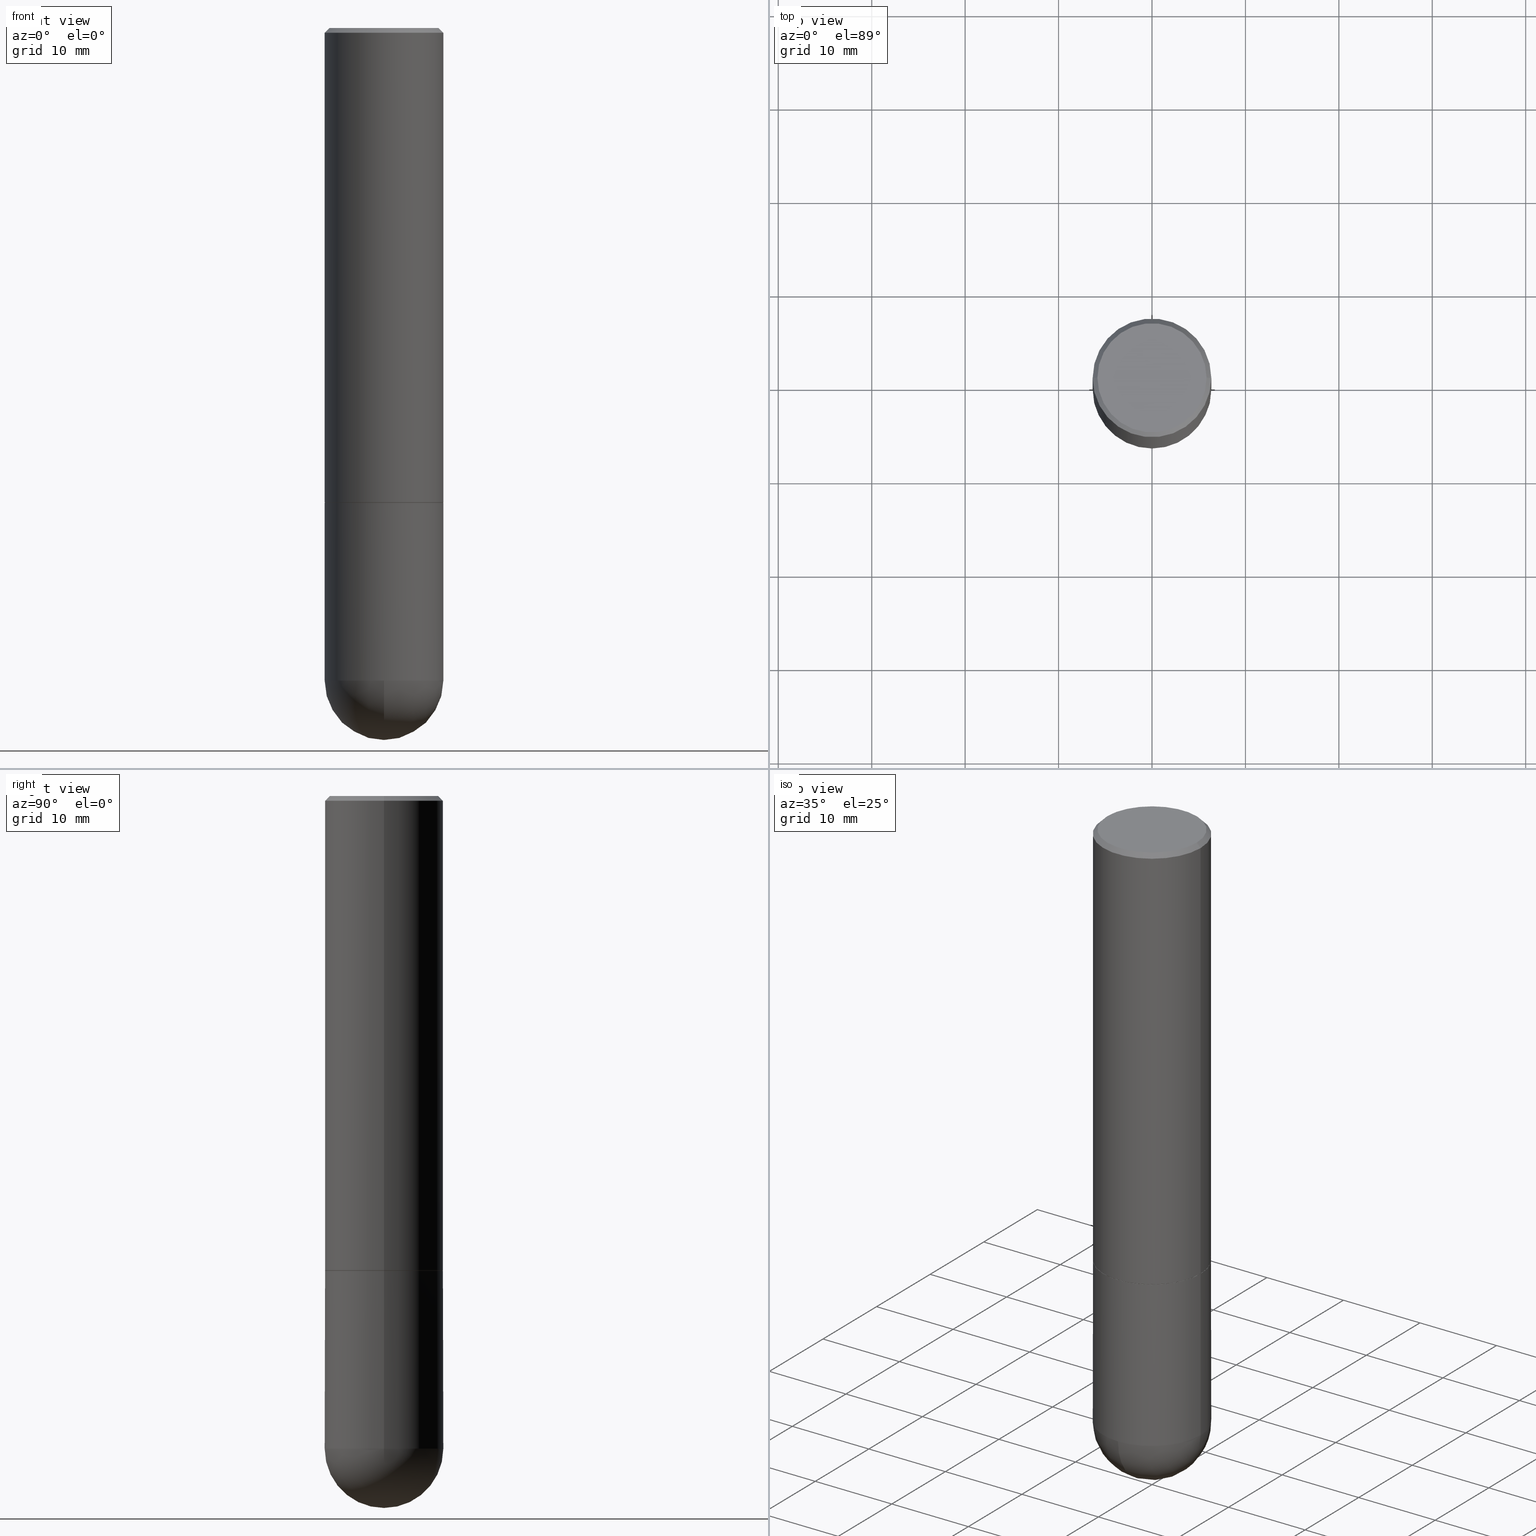
[diagram: canonical four-view strip — front | top / right | iso, engineering-drawing reading convention]
A machine part, canonical four-view strip (front | top / right | iso — engineering-drawing reading convention). The complete STEP part file that produces these views, byte-faithful:
ISO-10303-21;
HEADER;
FILE_DESCRIPTION (( 'STEP AP203' ),
    '1' );
FILE_NAME ('34923.STEP',
    '2024-02-21T18:25:57',
    ( '' ),
    ( '' ),
    'SwSTEP 2.0',
    'SolidWorks 2023',
    '' );
FILE_SCHEMA (( 'CONFIG_CONTROL_DESIGN' ));
ENDSEC;

DATA;
#1 = CARTESIAN_POINT ( 'NONE',  ( 6.725039217009124520E-29, -9.601573681818649859E-15, -2.750000000000000000 ) ) ;
#2 = ADVANCED_FACE ( 'NONE', ( #66 ), #123, .F. ) ;
#3 = AXIS2_PLACEMENT_3D ( 'NONE', #29, #222, #311 ) ;
#4 = CARTESIAN_POINT ( 'NONE',  ( -0.2500000000000002220, -1.748293572161901516E-15, -1.999000000000000110 ) ) ;
#5 = FACE_OUTER_BOUND ( 'NONE', #93, .T. ) ;
#6 = CARTESIAN_POINT ( 'NONE',  ( 0.2500000000000001110, -1.745740669421567664E-15, 1.219044193948984649E-29 ) ) ;
#7 = EDGE_CURVE ( 'NONE', #181, #81, #37, .T. ) ;
#8 = CARTESIAN_POINT ( 'NONE',  ( -0.2500000000000000000, -6.515911340352222020E-15, -2.750000000000000000 ) ) ;
#9 = CIRCLE ( 'NONE', #295, 0.2300000000000001488 ) ;
#10 = DIRECTION ( 'NONE',  ( -2.445468806185136597E-29, 3.491481338843145583E-15, 1.000000000000000000 ) ) ;
#11 = CARTESIAN_POINT ( 'NONE',  ( 4.890937612370273194E-29, -6.982962677686291165E-15, -2.000000000000000000 ) ) ;
#12 = ORIENTED_EDGE ( 'NONE', *, *, #319, .F. ) ;
#13 = APPROVAL_STATUS ( 'not_yet_approved' ) ;
#14 = PLANE ( 'NONE',  #284 ) ;
#15 = CIRCLE ( 'NONE', #259, 0.2500000000000000000 ) ;
#16 = LOCAL_TIME ( 13, 25, 57.00000000000000000, #218 ) ;
#17 = VERTEX_POINT ( 'NONE', #228 ) ;
#18 = CARTESIAN_POINT ( 'NONE',  ( 0.2500000000000002776, -8.725211865769017202E-15, -1.999000000000000110 ) ) ;
#19 = ORIENTED_EDGE ( 'NONE', *, *, #160, .T. ) ;
#20 = ADVANCED_FACE ( 'NONE', ( #247 ), #410, .T. ) ;
#21 = ORIENTED_EDGE ( 'NONE', *, *, #64, .T. ) ;
#22 = AXIS2_PLACEMENT_3D ( 'NONE', #287, #92, #165 ) ;
#23 = ORIENTED_EDGE ( 'NONE', *, *, #342, .F. ) ;
#24 = CC_DESIGN_APPROVAL ( #210, ( #241 ) ) ;
#25 = CARTESIAN_POINT ( 'NONE',  ( 0.2500000000000000000, -8.728703347107858632E-15, -2.000000000000000444 ) ) ;
#26 = APPROVAL_STATUS ( 'not_yet_approved' ) ;
#27 = DIRECTION ( 'NONE',  ( -2.445468806185136877E-29, 3.491481338843145188E-15, 1.000000000000000000 ) ) ;
#28 = CC_DESIGN_PERSON_AND_ORGANIZATION_ASSIGNMENT ( #60, #274, ( #241 ) ) ;
#29 = CARTESIAN_POINT ( 'NONE',  ( 4.890937612370287172E-31, -6.982962677686310098E-17, -0.02000000000000005593 ) ) ;
#30 = VECTOR ( 'NONE', #185, 39.37007874015748143 ) ;
#31 = AXIS2_PLACEMENT_3D ( 'NONE', #203, #10, #133 ) ;
#32 = CARTESIAN_POINT ( 'NONE',  ( -0.2489999999999999991, -5.208412811295418518E-15, -2.000000000000000000 ) ) ;
#33 = CC_DESIGN_DATE_AND_TIME_ASSIGNMENT ( #403, #308, ( #241 ) ) ;
#34 = CARTESIAN_POINT ( 'NONE',  ( 0.000000000000000000, 0.000000000000000000, 0.000000000000000000 ) ) ;
#35 = FACE_OUTER_BOUND ( 'NONE', #193, .T. ) ;
#36 = DIRECTION ( 'NONE',  ( 1.000000000000000000, -6.982962677686266711E-15, 4.876176775795935793E-29 ) ) ;
#37 = CIRCLE ( 'NONE', #183, 0.2489999999999999991 ) ;
#38 = DIRECTION ( 'NONE',  ( -2.445468806185136597E-29, 3.491481338843145583E-15, 1.000000000000000000 ) ) ;
#39 = ADVANCED_FACE ( 'NONE', ( #91 ), #350, .T. ) ;
#40 = MECHANICAL_CONTEXT ( 'NONE', #242, 'mechanical' ) ;
#41 = CARTESIAN_POINT ( 'NONE',  ( 0.2500000000000000000, -1.784954126219746189E-15, -0.02000000000000005593 ) ) ;
#42 = CIRCLE ( 'NONE', #253, 0.2500000000000000000 ) ;
#43 = CARTESIAN_POINT ( 'NONE',  ( -0.2500000000000000000, 1.675911042644703577E-15, -0.02000000000000005593 ) ) ;
#44 = AXIS2_PLACEMENT_3D ( 'NONE', #72, #197, #164 ) ;
#45 = ADVANCED_FACE ( 'NONE', ( #126 ), #215, .T. ) ;
#46 = COORDINATED_UNIVERSAL_TIME_OFFSET ( 5, 0, .BEHIND. ) ;
#47 = CARTESIAN_POINT ( 'NONE',  ( -0.2500000000000001110, 1.776356839400251254E-15, -1.229733772563727146E-29 ) ) ;
#48 = EDGE_CURVE ( 'NONE', #51, #56, #54, .T. ) ;
#49 = DATE_TIME_ROLE ( 'creation_date' ) ;
#50 = CARTESIAN_POINT ( 'NONE',  ( 3.340324525872703422E-45, -4.769098145217431040E-31, -1.365923996832131609E-16 ) ) ;
#51 = VERTEX_POINT ( 'NONE', #159 ) ;
#52 = DATE_AND_TIME ( #332, #216 ) ;
#53 = CARTESIAN_POINT ( 'NONE',  ( 0.2500000000000000000, -1.784954126219746189E-15, -0.02000000000000005593 ) ) ;
#54 = CIRCLE ( 'NONE', #321, 0.2500000000000000000 ) ;
#55 = ORGANIZATION ( 'UNSPECIFIED', 'UNSPECIFIED', '' ) ;
#56 = VERTEX_POINT ( 'NONE', #25 ) ;
#57 = EDGE_CURVE ( 'NONE', #307, #17, #408, .T. ) ;
#58 = ORIENTED_EDGE ( 'NONE', *, *, #392, .F. ) ;
#59 = ORIENTED_EDGE ( 'NONE', *, *, #352, .F. ) ;
#60 = PERSON_AND_ORGANIZATION ( #396, #55 ) ;
#61 = VECTOR ( 'NONE', #196, 39.37007874015748143 ) ;
#62 = VERTEX_POINT ( 'NONE', #370 ) ;
#63 =( GEOMETRIC_REPRESENTATION_CONTEXT ( 3 ) GLOBAL_UNCERTAINTY_ASSIGNED_CONTEXT ( ( #116 ) ) GLOBAL_UNIT_ASSIGNED_CONTEXT ( ( #107, #258, #305 ) ) REPRESENTATION_CONTEXT ( 'NONE', 'WORKASPACE' ) );
#64 = EDGE_CURVE ( 'NONE', #143, #341, #97, .T. ) ;
#65 = CARTESIAN_POINT ( 'NONE',  ( 0.2489999999999999991, -8.721720384430171040E-15, -2.000000000000000000 ) ) ;
#66 = FACE_OUTER_BOUND ( 'NONE', #366, .T. ) ;
#67 = DIRECTION ( 'NONE',  ( 1.000000000000000000, -6.982962677686266711E-15, 4.876176775795935793E-29 ) ) ;
#68 = ORIENTED_EDGE ( 'NONE', *, *, #64, .F. ) ;
#69 = EDGE_CURVE ( 'NONE', #181, #143, #225, .T. ) ;
#70 = VERTEX_POINT ( 'NONE', #347 ) ;
#71 = CARTESIAN_POINT ( 'NONE',  ( 4.890937612370287172E-31, -6.982962677686310098E-17, -0.02000000000000005593 ) ) ;
#72 = CARTESIAN_POINT ( 'NONE',  ( 4.890937612370287172E-31, -6.982962677686310098E-17, -0.02000000000000005593 ) ) ;
#73 = AXIS2_PLACEMENT_3D ( 'NONE', #212, #171, #358 ) ;
#74 = DIRECTION ( 'NONE',  ( -1.000000000000000000, 7.105427357601001070E-15, -4.926315508542082329E-29 ) ) ;
#75 = CARTESIAN_POINT ( 'NONE',  ( 0.000000000000000000, 0.000000000000000000, 0.000000000000000000 ) ) ;
#76 = FACE_OUTER_BOUND ( 'NONE', #86, .T. ) ;
#77 = PERSON_AND_ORGANIZATION ( #396, #55 ) ;
#78 = DIRECTION ( 'NONE',  ( -1.000000000000000000, 6.982962677686265922E-15, -4.876176775795935793E-29 ) ) ;
#79 = DIRECTION ( 'NONE',  ( 0.000000000000000000, 0.000000000000000000, 1.000000000000000000 ) ) ;
#80 = MANIFOLD_SOLID_BREP ( 'Body-Move/Copy2[1]', #316 ) ;
#81 = VERTEX_POINT ( 'NONE', #32 ) ;
#82 = CALENDAR_DATE ( 2024, 21, 2 ) ;
#83 = ORIENTED_EDGE ( 'NONE', *, *, #272, .F. ) ;
#84 = PERSON_AND_ORGANIZATION ( #396, #55 ) ;
#85 = ORIENTED_EDGE ( 'NONE', *, *, #263, .T. ) ;
#86 = EDGE_LOOP ( 'NONE', ( #237, #243, #345, #335, #400 ) ) ;
#87 = VERTEX_POINT ( 'NONE', #157 ) ;
#88 = CIRCLE ( 'NONE', #402, 0.2500000000000000000 ) ;
#89 = DIRECTION ( 'NONE',  ( -2.445468806185136597E-29, 3.491481338843145583E-15, 1.000000000000000000 ) ) ;
#90 = CONICAL_SURFACE ( 'NONE', #31, 0.2489999999999999991, 0.7853981633976873100 ) ;
#91 = FACE_OUTER_BOUND ( 'NONE', #302, .T. ) ;
#92 = DIRECTION ( 'NONE',  ( -2.445468806185136597E-29, 3.491481338843145583E-15, 1.000000000000000000 ) ) ;
#93 = EDGE_LOOP ( 'NONE', ( #129, #189 ) ) ;
#94 = FACE_OUTER_BOUND ( 'NONE', #219, .T. ) ;
#95 = DIRECTION ( 'NONE',  ( 6.982962677686266711E-15, 1.000000000000000000, 0.000000000000000000 ) ) ;
#96 = CIRCLE ( 'NONE', #22, 0.2489999999999999991 ) ;
#97 = CIRCLE ( 'NONE', #380, 0.2500000000000002776 ) ;
#98 = SPHERICAL_SURFACE ( 'NONE', #110, 0.2500000000000001110 ) ;
#99 = CARTESIAN_POINT ( 'NONE',  ( 4.888492143564088712E-29, -6.979471196347448158E-15, -1.999000000000000110 ) ) ;
#100 = DIRECTION ( 'NONE',  ( -2.445468806185136597E-29, 3.491481338843145583E-15, 1.000000000000000000 ) ) ;
#101 = FACE_OUTER_BOUND ( 'NONE', #146, .T. ) ;
#102 = AXIS2_PLACEMENT_3D ( 'NONE', #155, #244, #95 ) ;
#103 = FACE_OUTER_BOUND ( 'NONE', #255, .T. ) ;
#104 = CC_DESIGN_APPROVAL ( #195, ( #369 ) ) ;
#105 = DIRECTION ( 'NONE',  ( -0.7071067811867165487, 7.493145998870964739E-15, 0.7071067811863784858 ) ) ;
#106 = CARTESIAN_POINT ( 'NONE',  ( 0.000000000000000000, 0.000000000000000000, 0.000000000000000000 ) ) ;
#107 =( CONVERSION_BASED_UNIT ( 'INCH', #300 ) LENGTH_UNIT ( ) NAMED_UNIT ( #188 ) );
#108 = CARTESIAN_POINT ( 'NONE',  ( 0.000000000000000000, 0.000000000000000000, 0.000000000000000000 ) ) ;
#109 = PERSON_AND_ORGANIZATION_ROLE ( 'creator' ) ;
#110 = AXIS2_PLACEMENT_3D ( 'NONE', #128, #131, #346 ) ;
#111 = ORIENTED_EDGE ( 'NONE', *, *, #113, .T. ) ;
#112 =( LENGTH_UNIT ( ) NAMED_UNIT ( * ) SI_UNIT ( $, .METRE. ) );
#113 = EDGE_CURVE ( 'NONE', #70, #362, #15, .T. ) ;
#114 = ORIENTED_EDGE ( 'NONE', *, *, #269, .F. ) ;
#115 = ORIENTED_EDGE ( 'NONE', *, *, #239, .T. ) ;
#116 = UNCERTAINTY_MEASURE_WITH_UNIT (LENGTH_MEASURE( 1.000000000000000082E-05 ), #107, 'distance_accuracy_value', 'NONE');
#117 = AXIS2_PLACEMENT_3D ( 'NONE', #139, #393, #389 ) ;
#118 = ORIENTED_EDGE ( 'NONE', *, *, #373, .T. ) ;
#119 = PERSON_AND_ORGANIZATION ( #396, #55 ) ;
#120 = ORIENTED_EDGE ( 'NONE', *, *, #125, .T. ) ;
#121 = ORIENTED_EDGE ( 'NONE', *, *, #354, .T. ) ;
#122 = PERSON_AND_ORGANIZATION ( #396, #55 ) ;
#123 = PLANE ( 'NONE',  #266 ) ;
#124 = APPROVAL_PERSON_ORGANIZATION ( #84, #210, #182 ) ;
#125 = EDGE_CURVE ( 'NONE', #362, #56, #127, .T. ) ;
#126 = FACE_OUTER_BOUND ( 'NONE', #270, .T. ) ;
#127 = LINE ( 'NONE', #312, #198 ) ;
#128 = CARTESIAN_POINT ( 'NONE',  ( 6.393919439095240515E-29, -1.007575604995870173E-14, -2.750000000000000444 ) ) ;
#129 = ORIENTED_EDGE ( 'NONE', *, *, #7, .F. ) ;
#130 = LINE ( 'NONE', #6, #162 ) ;
#131 = DIRECTION ( 'NONE',  ( -1.000000000000000000, 6.982962677686265922E-15, -4.883557194083113462E-29 ) ) ;
#132 = APPROVAL_DATE_TIME ( #52, #314 ) ;
#133 = DIRECTION ( 'NONE',  ( 1.000000000000000000, -6.982962677686266711E-15, 0.000000000000000000 ) ) ;
#134 = AXIS2_PLACEMENT_3D ( 'NONE', #202, #74, #208 ) ;
#135 = DIRECTION ( 'NONE',  ( -2.445468806185136597E-29, 3.491481338843145583E-15, 1.000000000000000000 ) ) ;
#136 = EDGE_CURVE ( 'NONE', #407, #51, #154, .T. ) ;
#137 = PERSON_AND_ORGANIZATION_ROLE ( 'design_owner' ) ;
#138 = CALENDAR_DATE ( 2024, 21, 2 ) ;
#139 = CARTESIAN_POINT ( 'NONE',  ( 4.890937612370287172E-31, -6.982962677686310098E-17, -0.02000000000000005593 ) ) ;
#140 = VERTEX_POINT ( 'NONE', #262 ) ;
#141 = APPROVAL_ROLE ( '' ) ;
#142 = CIRCLE ( 'NONE', #149, 0.2500000000000000000 ) ;
#143 = VERTEX_POINT ( 'NONE', #18 ) ;
#144 = SHAPE_DEFINITION_REPRESENTATION ( #281, #153 ) ;
#145 = CYLINDRICAL_SURFACE ( 'NONE', #327, 0.2500000000000000000 ) ;
#146 = EDGE_LOOP ( 'NONE', ( #273, #147, #111, #120, #336 ) ) ;
#147 = ORIENTED_EDGE ( 'NONE', *, *, #207, .T. ) ;
#148 = DIRECTION ( 'NONE',  ( -0.7071067811865464625, 2.468850131082245228E-15, -0.7071067811865486830 ) ) ;
#149 = AXIS2_PLACEMENT_3D ( 'NONE', #161, #333, #204 ) ;
#150 = AXIS2_PLACEMENT_3D ( 'NONE', #75, #79, #363 ) ;
#151 = ORIENTED_EDGE ( 'NONE', *, *, #57, .F. ) ;
#152 = DIRECTION ( 'NONE',  ( 1.000000000000000000, -6.982962677686266711E-15, 0.000000000000000000 ) ) ;
#153 = ADVANCED_BREP_SHAPE_REPRESENTATION ( '34923', ( #80, #361, #150 ), #63 ) ;
#154 = LINE ( 'NONE', #235, #61 ) ;
#155 = CARTESIAN_POINT ( 'NONE',  ( 6.393919439095240515E-29, -1.007575604995870173E-14, -2.750000000000000444 ) ) ;
#156 = DIRECTION ( 'NONE',  ( -2.445468806185136597E-29, 3.491481338843145583E-15, 1.000000000000000000 ) ) ;
#157 = CARTESIAN_POINT ( 'NONE',  ( 0.2300000000000001488, -1.681434332853599997E-15, -1.365923996832016731E-16 ) ) ;
#158 = CARTESIAN_POINT ( 'NONE',  ( 4.890937612370273754E-29, -6.982962677686291954E-15, -2.000000000000000444 ) ) ;
#159 = CARTESIAN_POINT ( 'NONE',  ( -0.2500000000000000000, -6.515911340352220442E-15, -2.000000000000000444 ) ) ;
#160 = EDGE_CURVE ( 'NONE', #341, #140, #390, .T. ) ;
#161 = CARTESIAN_POINT ( 'NONE',  ( 6.725039217009124520E-29, -9.601573681818649859E-15, -2.750000000000000000 ) ) ;
#162 = VECTOR ( 'NONE', #256, 39.37007874015748143 ) ;
#163 = CIRCLE ( 'NONE', #134, 0.2500000000000001110 ) ;
#164 = DIRECTION ( 'NONE',  ( 1.000000000000000000, -6.982962677686266711E-15, 0.000000000000000000 ) ) ;
#165 = DIRECTION ( 'NONE',  ( 1.000000000000000000, -6.982962677686266711E-15, 0.000000000000000000 ) ) ;
#166 = LINE ( 'NONE', #41, #304 ) ;
#167 = CIRCLE ( 'NONE', #73, 0.2500000000000002776 ) ;
#168 = AXIS2_PLACEMENT_3D ( 'NONE', #384, #100, #232 ) ;
#169 = DIRECTION ( 'NONE',  ( 1.000000000000000000, -6.982962677686267499E-15, 4.876176775795936353E-29 ) ) ;
#170 = APPROVAL_STATUS ( 'not_yet_approved' ) ;
#171 = DIRECTION ( 'NONE',  ( -2.445468806185136597E-29, 3.491481338843145583E-15, 1.000000000000000000 ) ) ;
#172 = DIRECTION ( 'NONE',  ( 1.000000000000000000, -6.982962677686265922E-15, 4.879110437680772635E-29 ) ) ;
#173 = ORIENTED_EDGE ( 'NONE', *, *, #342, .T. ) ;
#174 = PERSON_AND_ORGANIZATION ( #396, #55 ) ;
#175 = AXIS2_PLACEMENT_3D ( 'NONE', #257, #320, #200 ) ;
#176 = LOCAL_TIME ( 13, 25, 57.00000000000000000, #329 ) ;
#177 = DIRECTION ( 'NONE',  ( -2.438088387897960049E-29, 3.491481338843145188E-15, 1.000000000000000000 ) ) ;
#178 = ORIENTED_EDGE ( 'NONE', *, *, #113, .F. ) ;
#179 = EDGE_LOOP ( 'NONE', ( #309, #217, #173, #401 ) ) ;
#180 = CC_DESIGN_PERSON_AND_ORGANIZATION_ASSIGNMENT ( #122, #365, ( #199 ) ) ;
#181 = VERTEX_POINT ( 'NONE', #399 ) ;
#182 = APPROVAL_ROLE ( '' ) ;
#183 = AXIS2_PLACEMENT_3D ( 'NONE', #184, #283, #285 ) ;
#184 = CARTESIAN_POINT ( 'NONE',  ( 4.890937612370273194E-29, -6.982962677686291165E-15, -2.000000000000000000 ) ) ;
#185 = DIRECTION ( 'NONE',  ( 0.7071067811867165487, -2.468850131084027659E-15, 0.7071067811863784858 ) ) ;
#186 = ADVANCED_FACE ( 'NONE', ( #76 ), #145, .T. ) ;
#187 = COORDINATED_UNIVERSAL_TIME_OFFSET ( 5, 0, .BEHIND. ) ;
#188 = DIMENSIONAL_EXPONENTS ( 1.000000000000000000, 0.000000000000000000, 0.000000000000000000, 0.000000000000000000, 0.000000000000000000, 0.000000000000000000, 0.000000000000000000 ) ;
#189 = ORIENTED_EDGE ( 'NONE', *, *, #282, .F. ) ;
#190 = CARTESIAN_POINT ( 'NONE',  ( 7.015976219256266741E-29, -1.093331829968014633E-14, -3.000000000000000888 ) ) ;
#191 = VECTOR ( 'NONE', #209, 39.37007874015748143 ) ;
#192 = ORIENTED_EDGE ( 'NONE', *, *, #352, .T. ) ;
#193 = EDGE_LOOP ( 'NONE', ( #58, #59, #398, #121 ) ) ;
#194 = DIRECTION ( 'NONE',  ( 2.445468806185136597E-29, -3.491481338843145583E-15, -1.000000000000000000 ) ) ;
#195 = APPROVAL ( #170, 'UNSPECIFIED' ) ;
#196 = DIRECTION ( 'NONE',  ( -2.445468806185136877E-29, 3.491481338843145188E-15, 1.000000000000000000 ) ) ;
#197 = DIRECTION ( 'NONE',  ( -2.445468806185136597E-29, 3.491481338843145583E-15, 1.000000000000000000 ) ) ;
#198 = VECTOR ( 'NONE', #27, 39.37007874015748143 ) ;
#199 = PRODUCT_DEFINITION_FORMATION_WITH_SPECIFIED_SOURCE ( 'ANY', '', #340, .NOT_KNOWN. ) ;
#200 = DIRECTION ( 'NONE',  ( 1.000000000000000000, -6.982962677686262766E-15, 0.000000000000000000 ) ) ;
#201 = EDGE_CURVE ( 'NONE', #341, #143, #167, .T. ) ;
#202 = CARTESIAN_POINT ( 'NONE',  ( 6.393919439095240515E-29, -1.007575604995870173E-14, -2.750000000000000444 ) ) ;
#203 = CARTESIAN_POINT ( 'NONE',  ( 4.890937612370273194E-29, -6.982962677686291165E-15, -2.000000000000000000 ) ) ;
#204 = DIRECTION ( 'NONE',  ( 1.000000000000000000, -6.982962677686262766E-15, 0.000000000000000000 ) ) ;
#205 = APPROVAL_PERSON_ORGANIZATION ( #174, #314, #141 ) ;
#206 = FACE_OUTER_BOUND ( 'NONE', #179, .T. ) ;
#207 = EDGE_CURVE ( 'NONE', #407, #70, #142, .T. ) ;
#208 = DIRECTION ( 'NONE',  ( -7.105427357601001859E-15, -1.000000000000000000, 0.000000000000000000 ) ) ;
#209 = DIRECTION ( 'NONE',  ( -2.445468806185136877E-29, 3.491481338843145188E-15, 1.000000000000000000 ) ) ;
#210 = APPROVAL ( #26, 'UNSPECIFIED' ) ;
#211 = VERTEX_POINT ( 'NONE', #53 ) ;
#212 = CARTESIAN_POINT ( 'NONE',  ( 4.888492143564088712E-29, -6.979471196347448158E-15, -1.999000000000000110 ) ) ;
#213 = ORIENTED_EDGE ( 'NONE', *, *, #373, .F. ) ;
#214 = APPROVAL_DATE_TIME ( #372, #210 ) ;
#215 = CONICAL_SURFACE ( 'NONE', #3, 0.2500000000000000000, 0.7853981633974467247 ) ;
#216 = LOCAL_TIME ( 13, 25, 57.00000000000000000, #268 ) ;
#217 = ORIENTED_EDGE ( 'NONE', *, *, #201, .T. ) ;
#218 = COORDINATED_UNIVERSAL_TIME_OFFSET ( 5, 0, .BEHIND. ) ;
#219 = EDGE_LOOP ( 'NONE', ( #404, #299, #395, #240 ) ) ;
#220 = ORIENTED_EDGE ( 'NONE', *, *, #392, .T. ) ;
#221 = CIRCLE ( 'NONE', #168, 0.2300000000000001488 ) ;
#222 = DIRECTION ( 'NONE',  ( 2.445468806185136597E-29, -3.491481338843145583E-15, -1.000000000000000000 ) ) ;
#223 = ADVANCED_FACE ( 'NONE', ( #5 ), #301, .F. ) ;
#224 = CARTESIAN_POINT ( 'NONE',  ( 6.393919439095240515E-29, -1.007575604995870173E-14, -2.750000000000000444 ) ) ;
#225 = LINE ( 'NONE', #65, #30 ) ;
#226 = CARTESIAN_POINT ( 'NONE',  ( 4.890937612370273194E-29, -6.982962677686291165E-15, -2.000000000000000000 ) ) ;
#227 = CIRCLE ( 'NONE', #117, 0.2500000000000000000 ) ;
#228 = CARTESIAN_POINT ( 'NONE',  ( 1.745740669421632745E-15, 0.2499999999999902300, -2.750000000000000888 ) ) ;
#229 = ADVANCED_FACE ( 'NONE', ( #292 ), #14, .F. ) ;
#230 = DIRECTION ( 'NONE',  ( 1.000000000000000000, -6.982962677686262766E-15, 0.000000000000000000 ) ) ;
#231 = ORIENTED_EDGE ( 'NONE', *, *, #239, .F. ) ;
#232 = DIRECTION ( 'NONE',  ( 1.000000000000000000, -6.982962677686265922E-15, 4.879110437680772635E-29 ) ) ;
#233 = PRODUCT_RELATED_PRODUCT_CATEGORY ( 'detail', '', ( #340 ) ) ;
#234 = CARTESIAN_POINT ( 'NONE',  ( 1.606081415867842251E-15, 0.2300000000000001488, -8.713369077755306147E-16 ) ) ;
#235 = CARTESIAN_POINT ( 'NONE',  ( -0.2500000000000000000, 1.776356839400250465E-15, -1.229733772563726445E-29 ) ) ;
#236 = APPROVAL_DATE_TIME ( #264, #195 ) ;
#237 = ORIENTED_EDGE ( 'NONE', *, *, #319, .T. ) ;
#238 = ORIENTED_EDGE ( 'NONE', *, *, #379, .T. ) ;
#239 = EDGE_CURVE ( 'NONE', #211, #140, #227, .T. ) ;
#240 = ORIENTED_EDGE ( 'NONE', *, *, #201, .F. ) ;
#241 = SECURITY_CLASSIFICATION ( '', '', #343 ) ;
#242 = APPLICATION_CONTEXT ( 'configuration controlled 3d designs of mechanical parts and assemblies' ) ;
#243 = ORIENTED_EDGE ( 'NONE', *, *, #136, .T. ) ;
#244 = DIRECTION ( 'NONE',  ( 1.000000000000000000, -6.982962677686265922E-15, 4.883557194083112340E-29 ) ) ;
#245 = CALENDAR_DATE ( 2024, 21, 2 ) ;
#246 = AXIS2_PLACEMENT_3D ( 'NONE', #71, #194, #289 ) ;
#247 = FACE_OUTER_BOUND ( 'NONE', #278, .T. ) ;
#248 = CYLINDRICAL_SURFACE ( 'NONE', #290, 0.2500000000000000000 ) ;
#249 = DIRECTION ( 'NONE',  ( 6.982962677686265922E-15, 1.000000000000000000, -4.370956789862818783E-15 ) ) ;
#250 = DIRECTION ( 'NONE',  ( 2.438088387897960049E-29, -3.491481338843145188E-15, -1.000000000000000000 ) ) ;
#251 = ADVANCED_FACE ( 'NONE', ( #206 ), #330, .T. ) ;
#252 = DIRECTION ( 'NONE',  ( -2.445468806185136597E-29, 3.491481338843145583E-15, 1.000000000000000000 ) ) ;
#253 = AXIS2_PLACEMENT_3D ( 'NONE', #381, #315, #230 ) ;
#254 = CC_DESIGN_SECURITY_CLASSIFICATION ( #241, ( #199 ) ) ;
#255 = EDGE_LOOP ( 'NONE', ( #265, #238, #68, #310 ) ) ;
#256 = DIRECTION ( 'NONE',  ( -2.445468806185136877E-29, 3.491481338843145188E-15, 1.000000000000000000 ) ) ;
#257 = CARTESIAN_POINT ( 'NONE',  ( 6.725039217009124520E-29, -9.601573681818649859E-15, -2.750000000000000000 ) ) ;
#258 =( NAMED_UNIT ( * ) PLANE_ANGLE_UNIT ( ) SI_UNIT ( $, .RADIAN. ) );
#259 = AXIS2_PLACEMENT_3D ( 'NONE', #1, #286, #412 ) ;
#260 = DIRECTION ( 'NONE',  ( -2.445468806185136597E-29, 3.491481338843145583E-15, 1.000000000000000000 ) ) ;
#261 = APPLICATION_PROTOCOL_DEFINITION ( 'international standard', 'config_control_design', 1994, #323 ) ;
#262 = CARTESIAN_POINT ( 'NONE',  ( -0.2500000000000000000, 1.675911042644703577E-15, -0.02000000000000005593 ) ) ;
#263 = EDGE_CURVE ( 'NONE', #87, #62, #9, .T. ) ;
#264 = DATE_AND_TIME ( #138, #382 ) ;
#265 = ORIENTED_EDGE ( 'NONE', *, *, #7, .T. ) ;
#266 = AXIS2_PLACEMENT_3D ( 'NONE', #280, #250, #353 ) ;
#267 = CIRCLE ( 'NONE', #44, 0.2500000000000000000 ) ;
#268 = COORDINATED_UNIVERSAL_TIME_OFFSET ( 5, 0, .BEHIND. ) ;
#269 = EDGE_CURVE ( 'NONE', #62, #140, #357, .T. ) ;
#270 = EDGE_LOOP ( 'NONE', ( #364, #220, #115, #114 ) ) ;
#271 = DIRECTION ( 'NONE',  ( 1.000000000000000000, -6.982962677686265922E-15, 4.876176775795935793E-29 ) ) ;
#272 = EDGE_CURVE ( 'NONE', #362, #17, #303, .T. ) ;
#273 = ORIENTED_EDGE ( 'NONE', *, *, #136, .F. ) ;
#274 = PERSON_AND_ORGANIZATION_ROLE ( 'classification_officer' ) ;
#275 = ORIENTED_EDGE ( 'NONE', *, *, #306, .T. ) ;
#276 = AXIS2_PLACEMENT_3D ( 'NONE', #11, #177, #271 ) ;
#277 = LOCAL_TIME ( 13, 25, 57.00000000000000000, #187 ) ;
#278 = EDGE_LOOP ( 'NONE', ( #21, #19, #231, #23 ) ) ;
#279 = ADVANCED_FACE ( 'NONE', ( #101 ), #248, .T. ) ;
#280 = CARTESIAN_POINT ( 'NONE',  ( 1.745740669421615390E-15, 0.2499999999999930334, -2.000000000000000888 ) ) ;
#281 = PRODUCT_DEFINITION_SHAPE ( 'NONE', 'NONE',  #369 ) ;
#282 = EDGE_CURVE ( 'NONE', #81, #181, #96, .T. ) ;
#283 = DIRECTION ( 'NONE',  ( -2.445468806185136597E-29, 3.491481338843145583E-15, 1.000000000000000000 ) ) ;
#284 = AXIS2_PLACEMENT_3D ( 'NONE', #234, #326, #78 ) ;
#285 = DIRECTION ( 'NONE',  ( 1.000000000000000000, -6.982962677686266711E-15, 0.000000000000000000 ) ) ;
#286 = DIRECTION ( 'NONE',  ( -2.445468806185136597E-29, 3.491481338843145583E-15, 1.000000000000000000 ) ) ;
#287 = CARTESIAN_POINT ( 'NONE',  ( 4.890937612370273194E-29, -6.982962677686291165E-15, -2.000000000000000000 ) ) ;
#288 = DIRECTION ( 'NONE',  ( 1.000000000000000000, -6.982962677686267499E-15, 4.876176775795936353E-29 ) ) ;
#289 = DIRECTION ( 'NONE',  ( -1.000000000000000000, 6.982962677686266711E-15, 0.000000000000000000 ) ) ;
#290 = AXIS2_PLACEMENT_3D ( 'NONE', #375, #156, #67 ) ;
#291 = CC_DESIGN_APPROVAL ( #314, ( #199 ) ) ;
#292 = FACE_OUTER_BOUND ( 'NONE', #367, .T. ) ;
#293 = CARTESIAN_POINT ( 'NONE',  ( 0.2500000000000000000, -1.003800884917403995E-14, -2.750000000000000000 ) ) ;
#294 = CARTESIAN_POINT ( 'NONE',  ( -0.2489999999999999991, -5.213711265643641709E-15, -2.000000000000000000 ) ) ;
#295 = AXIS2_PLACEMENT_3D ( 'NONE', #50, #260, #172 ) ;
#296 = VECTOR ( 'NONE', #105, 39.37007874015748143 ) ;
#297 = ADVANCED_FACE ( 'NONE', ( #377 ), #98, .T. ) ;
#298 = LINE ( 'NONE', #294, #296 ) ;
#299 = ORIENTED_EDGE ( 'NONE', *, *, #282, .T. ) ;
#300 = LENGTH_MEASURE_WITH_UNIT ( LENGTH_MEASURE( 0.02539999999999999897 ), #112 );
#301 = PLANE ( 'NONE',  #276 ) ;
#302 = EDGE_LOOP ( 'NONE', ( #151, #118, #338, #12 ) ) ;
#303 = CIRCLE ( 'NONE', #175, 0.2500000000000000000 ) ;
#304 = VECTOR ( 'NONE', #385, 39.37007874015748143 ) ;
#305 =( NAMED_UNIT ( * ) SI_UNIT ( $, .STERADIAN. ) SOLID_ANGLE_UNIT ( ) );
#306 = EDGE_CURVE ( 'NONE', #56, #51, #88, .T. ) ;
#307 = VERTEX_POINT ( 'NONE', #190 ) ;
#308 = DATE_TIME_ROLE ( 'classification_date' ) ;
#309 = ORIENTED_EDGE ( 'NONE', *, *, #160, .F. ) ;
#310 = ORIENTED_EDGE ( 'NONE', *, *, #69, .F. ) ;
#311 = DIRECTION ( 'NONE',  ( -1.000000000000000000, 6.982962677686266711E-15, 0.000000000000000000 ) ) ;
#312 = CARTESIAN_POINT ( 'NONE',  ( 0.2500000000000000000, -1.745740669421566678E-15, 1.219044193948983948E-29 ) ) ;
#313 = DIRECTION ( 'NONE',  ( 1.000000000000000000, -6.982962677686266711E-15, 0.000000000000000000 ) ) ;
#314 = APPROVAL ( #13, 'UNSPECIFIED' ) ;
#315 = DIRECTION ( 'NONE',  ( -2.445468806185136597E-29, 3.491481338843145583E-15, 1.000000000000000000 ) ) ;
#316 = CLOSED_SHELL ( 'NONE', ( #186, #39, #297, #2, #279 ) ) ;
#317 = ORIENTED_EDGE ( 'NONE', *, *, #48, .T. ) ;
#318 = DIRECTION ( 'NONE',  ( -2.445468806185136597E-29, 3.491481338843145583E-15, 1.000000000000000000 ) ) ;
#319 = EDGE_CURVE ( 'NONE', #17, #407, #42, .T. ) ;
#320 = DIRECTION ( 'NONE',  ( -2.445468806185136597E-29, 3.491481338843145583E-15, 1.000000000000000000 ) ) ;
#321 = AXIS2_PLACEMENT_3D ( 'NONE', #405, #89, #313 ) ;
#322 = CC_DESIGN_PERSON_AND_ORGANIZATION_ASSIGNMENT ( #119, #368, ( #199 ) ) ;
#323 = APPLICATION_CONTEXT ( 'configuration controlled 3d designs of mechanical parts and assemblies' ) ;
#324 = APPLICATION_PROTOCOL_DEFINITION ( 'international standard', 'config_control_design', 1994, #242 ) ;
#325 = ADVANCED_FACE ( 'NONE', ( #94 ), #359, .T. ) ;
#326 = DIRECTION ( 'NONE',  ( 2.438088387897960049E-29, -3.491481338843145188E-15, -1.000000000000000000 ) ) ;
#327 = AXIS2_PLACEMENT_3D ( 'NONE', #106, #318, #36 ) ;
#328 = APPROVAL_ROLE ( '' ) ;
#329 = COORDINATED_UNIVERSAL_TIME_OFFSET ( 5, 0, .BEHIND. ) ;
#330 = CYLINDRICAL_SURFACE ( 'NONE', #371, 0.2500000000000001110 ) ;
#331 = ORIENTED_EDGE ( 'NONE', *, *, #57, .T. ) ;
#332 = CALENDAR_DATE ( 2024, 21, 2 ) ;
#333 = DIRECTION ( 'NONE',  ( -2.445468806185136597E-29, 3.491481338843145583E-15, 1.000000000000000000 ) ) ;
#334 = CLOSED_SHELL ( 'NONE', ( #409, #20, #45, #337, #251, #325, #223, #229 ) ) ;
#335 = ORIENTED_EDGE ( 'NONE', *, *, #125, .F. ) ;
#336 = ORIENTED_EDGE ( 'NONE', *, *, #48, .F. ) ;
#337 = ADVANCED_FACE ( 'NONE', ( #35 ), #394, .T. ) ;
#338 = ORIENTED_EDGE ( 'NONE', *, *, #207, .F. ) ;
#339 = AXIS2_PLACEMENT_3D ( 'NONE', #226, #38, #351 ) ;
#340 = PRODUCT ( '34923', '34923', '', ( #40 ) ) ;
#341 = VERTEX_POINT ( 'NONE', #4 ) ;
#342 = EDGE_CURVE ( 'NONE', #143, #211, #130, .T. ) ;
#343 = SECURITY_CLASSIFICATION_LEVEL ( 'unclassified' ) ;
#344 = DESIGN_CONTEXT ( 'detailed design', #323, 'design' ) ;
#345 = ORIENTED_EDGE ( 'NONE', *, *, #306, .F. ) ;
#346 = DIRECTION ( 'NONE',  ( 6.982962677686265922E-15, 1.000000000000000000, -4.370956789862818783E-15 ) ) ;
#347 = CARTESIAN_POINT ( 'NONE',  ( -1.776356839400184989E-15, -0.2500000000000098810, -2.749999999999998668 ) ) ;
#348 = VECTOR ( 'NONE', #148, 39.37007874015748143 ) ;
#349 = APPROVAL_PERSON_ORGANIZATION ( #77, #195, #328 ) ;
#350 = SPHERICAL_SURFACE ( 'NONE', #386, 0.2500000000000001110 ) ;
#351 = DIRECTION ( 'NONE',  ( 1.000000000000000000, -6.982962677686266711E-15, 0.000000000000000000 ) ) ;
#352 = EDGE_CURVE ( 'NONE', #62, #87, #221, .T. ) ;
#353 = DIRECTION ( 'NONE',  ( -1.000000000000000000, 6.982962677686265922E-15, -4.876176775795935793E-29 ) ) ;
#354 = EDGE_CURVE ( 'NONE', #140, #211, #267, .T. ) ;
#355 = AXIS2_PLACEMENT_3D ( 'NONE', #34, #378, #288 ) ;
#356 = CC_DESIGN_PERSON_AND_ORGANIZATION_ASSIGNMENT ( #391, #109, ( #369 ) ) ;
#357 = LINE ( 'NONE', #43, #348 ) ;
#358 = DIRECTION ( 'NONE',  ( 1.000000000000000000, -6.982962677686266711E-15, 0.000000000000000000 ) ) ;
#359 = CONICAL_SURFACE ( 'NONE', #339, 0.2489999999999999991, 0.7853981633976873100 ) ;
#360 = DATE_AND_TIME ( #82, #176 ) ;
#361 = MANIFOLD_SOLID_BREP ( 'Body-Move/Copy2[2]', #334 ) ;
#362 = VERTEX_POINT ( 'NONE', #293 ) ;
#363 = DIRECTION ( 'NONE',  ( 1.000000000000000000, 0.000000000000000000, 0.000000000000000000 ) ) ;
#364 = ORIENTED_EDGE ( 'NONE', *, *, #263, .F. ) ;
#365 = PERSON_AND_ORGANIZATION_ROLE ( 'design_supplier' ) ;
#366 = EDGE_LOOP ( 'NONE', ( #275, #317 ) ) ;
#367 = EDGE_LOOP ( 'NONE', ( #192, #85 ) ) ;
#368 = PERSON_AND_ORGANIZATION_ROLE ( 'creator' ) ;
#369 = PRODUCT_DEFINITION ( 'UNKNOWN', '', #199, #344 ) ;
#370 = CARTESIAN_POINT ( 'NONE',  ( -0.2300000000000001488, 1.640996229256272716E-15, -1.365923996832245008E-16 ) ) ;
#371 = AXIS2_PLACEMENT_3D ( 'NONE', #108, #135, #169 ) ;
#372 = DATE_AND_TIME ( #245, #16 ) ;
#373 = EDGE_CURVE ( 'NONE', #307, #70, #163, .T. ) ;
#374 = EDGE_LOOP ( 'NONE', ( #213, #331, #83, #178 ) ) ;
#375 = CARTESIAN_POINT ( 'NONE',  ( 0.000000000000000000, 0.000000000000000000, 0.000000000000000000 ) ) ;
#376 = DIRECTION ( 'NONE',  ( -2.445468806185136597E-29, 3.491481338843145583E-15, 1.000000000000000000 ) ) ;
#377 = FACE_OUTER_BOUND ( 'NONE', #374, .T. ) ;
#378 = DIRECTION ( 'NONE',  ( -2.445468806185136597E-29, 3.491481338843145583E-15, 1.000000000000000000 ) ) ;
#379 = EDGE_CURVE ( 'NONE', #81, #341, #298, .T. ) ;
#380 = AXIS2_PLACEMENT_3D ( 'NONE', #99, #376, #152 ) ;
#381 = CARTESIAN_POINT ( 'NONE',  ( 6.725039217009124520E-29, -9.601573681818649859E-15, -2.750000000000000000 ) ) ;
#382 = LOCAL_TIME ( 13, 25, 57.00000000000000000, #46 ) ;
#383 = DIRECTION ( 'NONE',  ( -1.000000000000000000, 6.982962677686265922E-15, -4.883557194083113462E-29 ) ) ;
#384 = CARTESIAN_POINT ( 'NONE',  ( 3.340324525872703422E-45, -4.769098145217431040E-31, -1.365923996832131609E-16 ) ) ;
#385 = DIRECTION ( 'NONE',  ( 0.7071067811865464625, -7.319954787623252890E-15, -0.7071067811865486830 ) ) ;
#386 = AXIS2_PLACEMENT_3D ( 'NONE', #224, #383, #249 ) ;
#387 = CC_DESIGN_PERSON_AND_ORGANIZATION_ASSIGNMENT ( #388, #137, ( #340 ) ) ;
#388 = PERSON_AND_ORGANIZATION ( #396, #55 ) ;
#389 = DIRECTION ( 'NONE',  ( 1.000000000000000000, -6.982962677686266711E-15, 0.000000000000000000 ) ) ;
#390 = LINE ( 'NONE', #47, #191 ) ;
#391 = PERSON_AND_ORGANIZATION ( #396, #55 ) ;
#392 = EDGE_CURVE ( 'NONE', #87, #211, #166, .T. ) ;
#393 = DIRECTION ( 'NONE',  ( -2.445468806185136597E-29, 3.491481338843145583E-15, 1.000000000000000000 ) ) ;
#394 = CONICAL_SURFACE ( 'NONE', #246, 0.2500000000000000000, 0.7853981633974467247 ) ;
#395 = ORIENTED_EDGE ( 'NONE', *, *, #69, .T. ) ;
#396 = PERSON ( 'UNSPECIFIED', 'UNSPECIFIED', 'UNSPECIFIED', ('UNSPECIFIED'), ('UNSPECIFIED'), ('UNSPECIFIED') ) ;
#397 = CC_DESIGN_DATE_AND_TIME_ASSIGNMENT ( #360, #49, ( #369 ) ) ;
#398 = ORIENTED_EDGE ( 'NONE', *, *, #269, .T. ) ;
#399 = CARTESIAN_POINT ( 'NONE',  ( 0.2489999999999999991, -8.721720384430171040E-15, -2.000000000000000000 ) ) ;
#400 = ORIENTED_EDGE ( 'NONE', *, *, #272, .T. ) ;
#401 = ORIENTED_EDGE ( 'NONE', *, *, #354, .F. ) ;
#402 = AXIS2_PLACEMENT_3D ( 'NONE', #158, #252, #411 ) ;
#403 = DATE_AND_TIME ( #406, #277 ) ;
#404 = ORIENTED_EDGE ( 'NONE', *, *, #379, .F. ) ;
#405 = CARTESIAN_POINT ( 'NONE',  ( 4.890937612370273754E-29, -6.982962677686291954E-15, -2.000000000000000444 ) ) ;
#406 = CALENDAR_DATE ( 2024, 21, 2 ) ;
#407 = VERTEX_POINT ( 'NONE', #8 ) ;
#408 = CIRCLE ( 'NONE', #102, 0.2500000000000001110 ) ;
#409 = ADVANCED_FACE ( 'NONE', ( #103 ), #90, .T. ) ;
#410 = CYLINDRICAL_SURFACE ( 'NONE', #355, 0.2500000000000001110 ) ;
#411 = DIRECTION ( 'NONE',  ( 1.000000000000000000, -6.982962677686266711E-15, 0.000000000000000000 ) ) ;
#412 = DIRECTION ( 'NONE',  ( 1.000000000000000000, -6.982962677686262766E-15, 0.000000000000000000 ) ) ;
ENDSEC;
END-ISO-10303-21;
